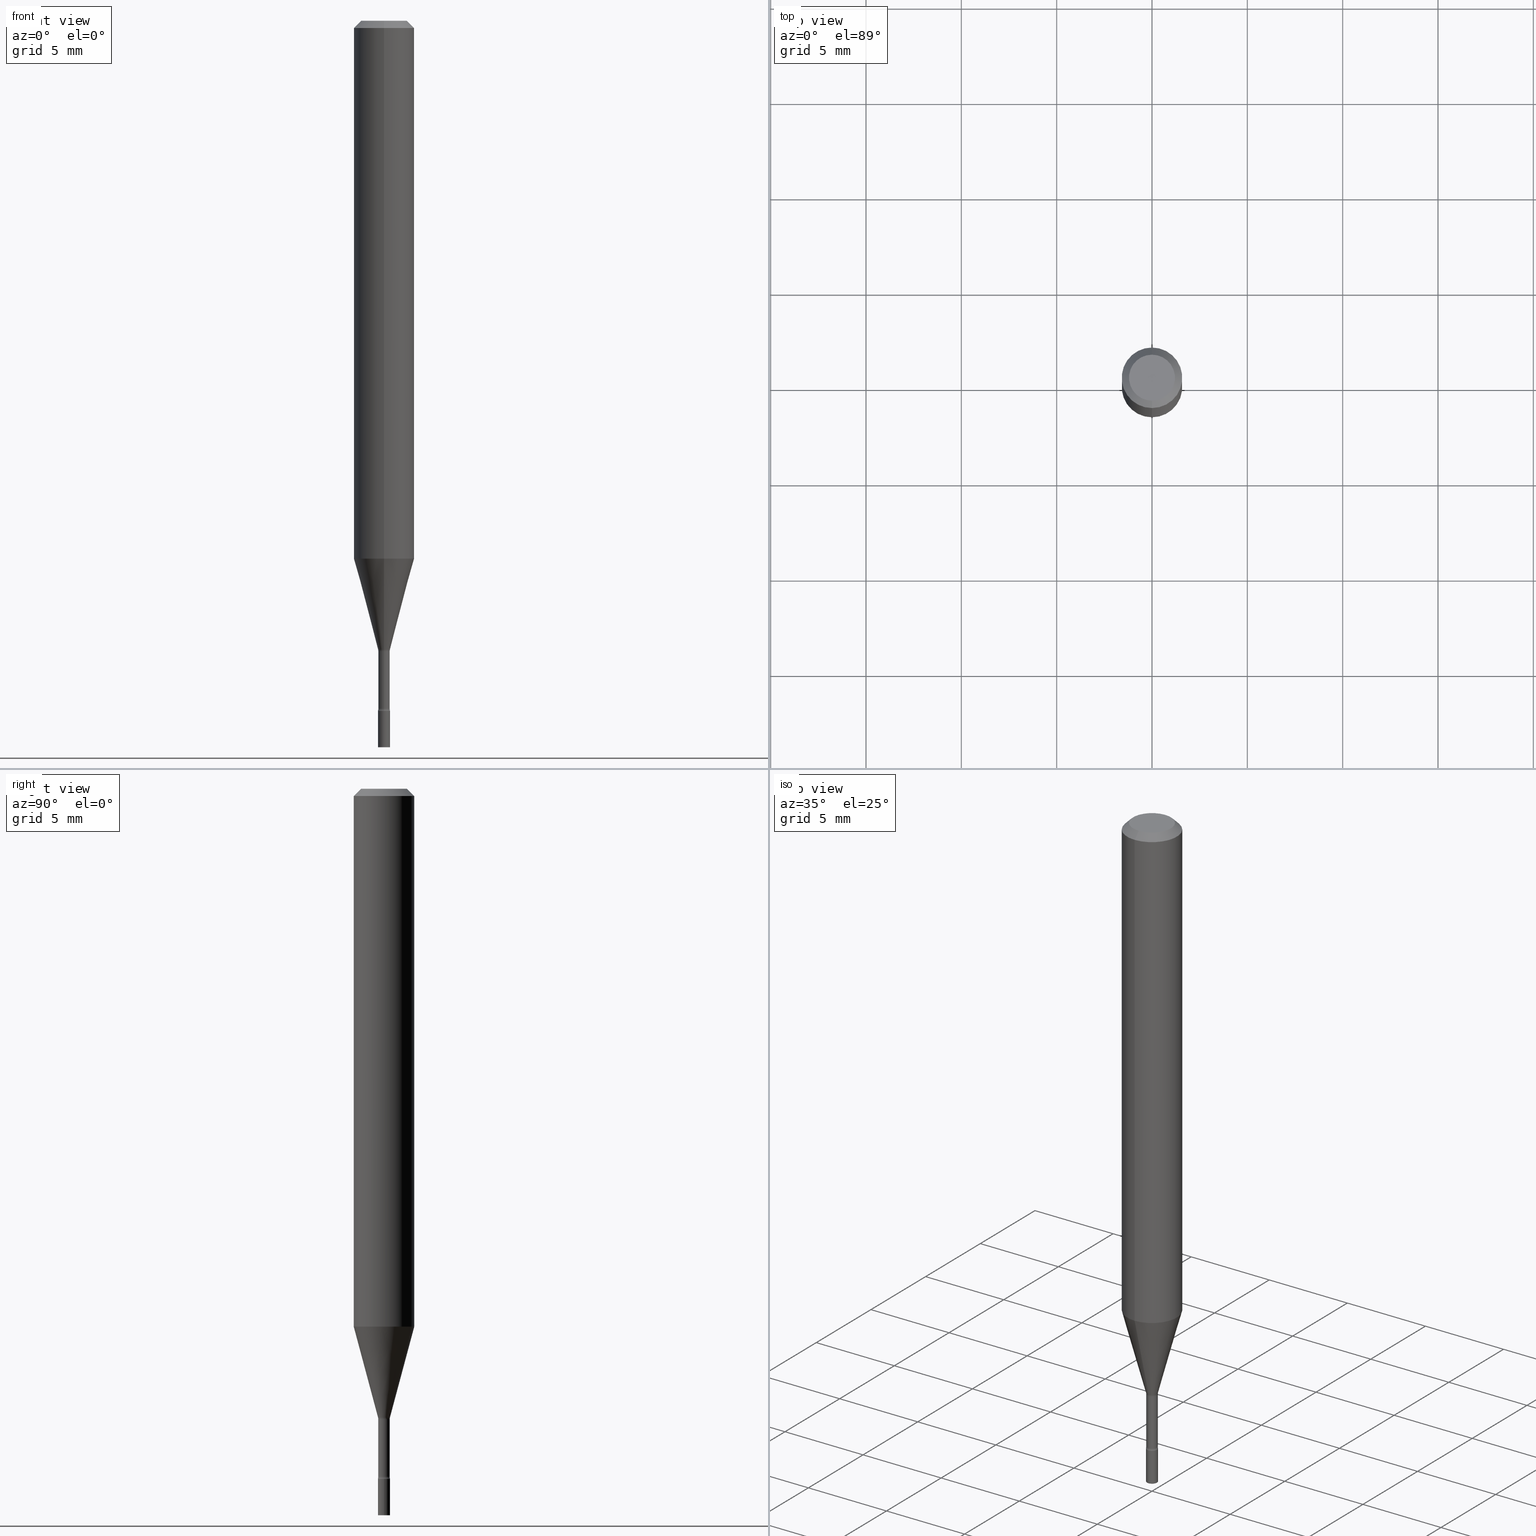
[diagram: canonical four-view strip — front | top / right | iso, engineering-drawing reading convention]
A machine part, canonical four-view strip (front | top / right | iso — engineering-drawing reading convention). The complete STEP part file that produces these views, byte-faithful:
ISO-10303-21;
HEADER;
FILE_DESCRIPTION (( 'STEP AP203' ),
    '1' );
FILE_NAME ('04269.STEP',
    '2024-03-08T22:43:08',
    ( '' ),
    ( '' ),
    'SwSTEP 2.0',
    'SolidWorks 2023',
    '' );
FILE_SCHEMA (( 'CONFIG_CONTROL_DESIGN' ));
ENDSEC;

DATA;
#1 = CARTESIAN_POINT ( 'NONE',  ( 3.174285327683107935E-29, -4.532494005902626170E-15, -1.298092501787273090 ) ) ;
#2 = CIRCLE ( 'NONE', #350, 0.06250000000000000000 ) ;
#3 = ORGANIZATION ( 'UNSPECIFIED', 'UNSPECIFIED', '' ) ;
#4 = ORIENTED_EDGE ( 'NONE', *, *, #8, .F. ) ;
#5 = DIRECTION ( 'NONE',  ( 6.982962677686265922E-15, 1.000000000000000000, -3.491657181334983134E-15 ) ) ;
#6 = DIRECTION ( 'NONE',  ( -2.445346016029371458E-29, 3.491657181334983134E-15, 1.000000000000000000 ) ) ;
#7 = ORIENTED_EDGE ( 'NONE', *, *, #293, .T. ) ;
#8 = EDGE_CURVE ( 'NONE', #81, #403, #355, .T. ) ;
#9 = PLANE ( 'NONE',  #71 ) ;
#10 = CIRCLE ( 'NONE', #52, 0.01250000000000000069 ) ;
#11 = ORIENTED_EDGE ( 'NONE', *, *, #196, .T. ) ;
#12 = AXIS2_PLACEMENT_3D ( 'NONE', #374, #48, #175 ) ;
#13 = LINE ( 'NONE', #134, #103 ) ;
#14 = EDGE_LOOP ( 'NONE', ( #29, #400, #425, #182 ) ) ;
#15 = DIRECTION ( 'NONE',  ( -2.445346016029371458E-29, 3.491657181334983134E-15, 1.000000000000000000 ) ) ;
#16 = ADVANCED_FACE ( 'NONE', ( #385 ), #500, .T. ) ;
#17 = ORIENTED_EDGE ( 'NONE', *, *, #277, .T. ) ;
#18 = DIRECTION ( 'NONE',  ( 2.438088387897960049E-29, -3.491481338843145188E-15, -1.000000000000000000 ) ) ;
#19 = ORIENTED_EDGE ( 'NONE', *, *, #32, .F. ) ;
#20 = CIRCLE ( 'NONE', #503, 0.06250000000000000000 ) ;
#21 = CARTESIAN_POINT ( 'NONE',  ( 3.473339087963991292E-29, -4.959007687372092628E-15, -1.420316251501201332 ) ) ;
#22 = CALENDAR_DATE ( 2024, 8, 3 ) ;
#23 = ORIENTED_EDGE ( 'NONE', *, *, #327, .F. ) ;
#24 = EDGE_CURVE ( 'NONE', #99, #131, #231, .T. ) ;
#25 = DIRECTION ( 'NONE',  ( -2.445468806185136597E-29, 3.491481338843145583E-15, 1.000000000000000000 ) ) ;
#26 = AXIS2_PLACEMENT_3D ( 'NONE', #393, #313, #467 ) ;
#27 = CC_DESIGN_PERSON_AND_ORGANIZATION_ASSIGNMENT ( #85, #290, ( #466 ) ) ;
#28 = CALENDAR_DATE ( 2024, 8, 3 ) ;
#29 = ORIENTED_EDGE ( 'NONE', *, *, #444, .T. ) ;
#30 = DIRECTION ( 'NONE',  ( -2.445346016029371458E-29, 3.491657181334983134E-15, 1.000000000000000000 ) ) ;
#31 = FACE_OUTER_BOUND ( 'NONE', #478, .T. ) ;
#32 = EDGE_CURVE ( 'NONE', #257, #329, #185, .T. ) ;
#33 = LINE ( 'NONE', #477, #372 ) ;
#34 = AXIS2_PLACEMENT_3D ( 'NONE', #21, #183, #227 ) ;
#35 = CIRCLE ( 'NONE', #323, 0.01250000000000000069 ) ;
#36 = CARTESIAN_POINT ( 'NONE',  ( 8.881784197004742293E-17, 0.01249999999999503418, -1.425000000000000266 ) ) ;
#37 = ORIENTED_EDGE ( 'NONE', *, *, #244, .T. ) ;
#38 = ADVANCED_FACE ( 'NONE', ( #222 ), #520, .F. ) ;
#39 = APPROVAL_ROLE ( '' ) ;
#40 = CARTESIAN_POINT ( 'NONE',  ( 1.900701818158615798E-16, 0.02674999999999505204, -1.420316251501201332 ) ) ;
#41 = ORIENTED_EDGE ( 'NONE', *, *, #225, .F. ) ;
#42 = DIRECTION ( 'NONE',  ( -6.982962677686266711E-15, -1.000000000000000000, 3.491657181334983529E-15 ) ) ;
#43 = DATE_TIME_ROLE ( 'classification_date' ) ;
#44 = CIRCLE ( 'NONE', #399, 0.06250000000000000000 ) ;
#45 = CARTESIAN_POINT ( 'NONE',  ( 0.000000000000000000, 0.000000000000000000, 0.000000000000000000 ) ) ;
#46 = DIRECTION ( 'NONE',  ( -6.982962677686265922E-15, -1.000000000000000000, 0.000000000000000000 ) ) ;
#47 = ADVANCED_FACE ( 'NONE', ( #309 ), #501, .T. ) ;
#48 = DIRECTION ( 'NONE',  ( -2.445468806185136597E-29, 3.491481338843145583E-15, 1.000000000000000000 ) ) ;
#49 = ORIENTED_EDGE ( 'NONE', *, *, #270, .T. ) ;
#50 = DIRECTION ( 'NONE',  ( -6.982962677686265922E-15, -1.000000000000000000, 3.491657181334983529E-15 ) ) ;
#51 = APPLICATION_CONTEXT ( 'configuration controlled 3d designs of mechanical parts and assemblies' ) ;
#52 = AXIS2_PLACEMENT_3D ( 'NONE', #395, #366, #325 ) ;
#53 = ORIENTED_EDGE ( 'NONE', *, *, #426, .F. ) ;
#54 = AXIS2_PLACEMENT_3D ( 'NONE', #45, #322, #362 ) ;
#55 = ADVANCED_FACE ( 'NONE', ( #470 ), #102, .F. ) ;
#56 = DIRECTION ( 'NONE',  ( 6.982962677686265922E-15, 1.000000000000000000, -3.483106191921935554E-15 ) ) ;
#57 = ORIENTED_EDGE ( 'NONE', *, *, #24, .F. ) ;
#58 = LINE ( 'NONE', #299, #496 ) ;
#59 = EDGE_LOOP ( 'NONE', ( #413, #455 ) ) ;
#60 = DIRECTION ( 'NONE',  ( -6.982962677686265922E-15, -1.000000000000000000, 4.370956789862821150E-15 ) ) ;
#61 = ORIENTED_EDGE ( 'NONE', *, *, #293, .F. ) ;
#62 = VECTOR ( 'NONE', #92, 39.37007874015748143 ) ;
#63 = DIRECTION ( 'NONE',  ( -6.982962677686266711E-15, -1.000000000000000000, 0.000000000000000000 ) ) ;
#64 = ADVANCED_FACE ( 'NONE', ( #31 ), #70, .F. ) ;
#65 = CARTESIAN_POINT ( 'NONE',  ( -4.364351673553912750E-16, -0.06250000000000005551, -0.01499999999999981209 ) ) ;
#66 = CARTESIAN_POINT ( 'NONE',  ( 8.728703347111317935E-17, 0.01249999999999502551, -1.425000000000000266 ) ) ;
#67 = APPROVAL_STATUS ( 'not_yet_approved' ) ;
#68 = DIRECTION ( 'NONE',  ( -2.445346016029371458E-29, 3.491657181334983134E-15, 1.000000000000000000 ) ) ;
#69 = APPLICATION_CONTEXT ( 'configuration controlled 3d designs of mechanical parts and assemblies' ) ;
#70 = TOROIDAL_SURFACE ( 'NONE', #34, 0.02675000000000001335, 0.01500000000000001679 ) ;
#71 = AXIS2_PLACEMENT_3D ( 'NONE', #172, #18, #261 ) ;
#72 = LOCAL_TIME ( 17, 43, 8.000000000000000000, #510 ) ;
#73 = APPROVAL_ROLE ( '' ) ;
#74 = DIRECTION ( 'NONE',  ( -6.982962677686269077E-15, -1.000000000000000000, 0.000000000000000000 ) ) ;
#75 = APPROVAL_DATE_TIME ( #242, #289 ) ;
#76 = CARTESIAN_POINT ( 'NONE',  ( 3.484793048813820547E-29, -4.975360907851483175E-15, -1.425000000000000266 ) ) ;
#77 = ORIENTED_EDGE ( 'NONE', *, *, #108, .F. ) ;
#78 = CIRCLE ( 'NONE', #502, 0.04749999999999999362 ) ;
#79 = AXIS2_PLACEMENT_3D ( 'NONE', #80, #157, #74 ) ;
#80 = CARTESIAN_POINT ( 'NONE',  ( -1.867942516280757616E-16, -0.02675000000000454445, -1.301974787463811012 ) ) ;
#81 = VERTEX_POINT ( 'NONE', #188 ) ;
#82 = PERSON_AND_ORGANIZATION_ROLE ( 'classification_officer' ) ;
#83 = DIRECTION ( 'NONE',  ( 1.000000000000000000, -6.982962677686265922E-15, 4.876176775795935793E-29 ) ) ;
#84 = ORIENTED_EDGE ( 'NONE', *, *, #270, .F. ) ;
#85 = PERSON_AND_ORGANIZATION ( #153, #3 ) ;
#86 = DIRECTION ( 'NONE',  ( -2.445346016029371458E-29, 3.491657181334983134E-15, 1.000000000000000000 ) ) ;
#87 = ADVANCED_FACE ( 'NONE', ( #110 ), #135, .F. ) ;
#88 = CIRCLE ( 'NONE', #440, 0.01174999999999999482 ) ;
#89 = CARTESIAN_POINT ( 'NONE',  ( 0.000000000000000000, 0.000000000000000000, 0.000000000000000000 ) ) ;
#90 = LINE ( 'NONE', #410, #62 ) ;
#91 = ORIENTED_EDGE ( 'NONE', *, *, #426, .T. ) ;
#92 = DIRECTION ( 'NONE',  ( -2.445346016029371178E-29, 3.491657181334983134E-15, 1.000000000000000000 ) ) ;
#93 = ORIENTED_EDGE ( 'NONE', *, *, #108, .T. ) ;
#94 = ADVANCED_FACE ( 'NONE', ( #267 ), #107, .T. ) ;
#95 = FACE_OUTER_BOUND ( 'NONE', #14, .T. ) ;
#96 = ORIENTED_EDGE ( 'NONE', *, *, #461, .T. ) ;
#97 = VECTOR ( 'NONE', #215, 39.37007874015748143 ) ;
#98 = LINE ( 'NONE', #294, #285 ) ;
#99 = VERTEX_POINT ( 'NONE', #316 ) ;
#100 = EDGE_LOOP ( 'NONE', ( #361, #77 ) ) ;
#101 = EDGE_CURVE ( 'NONE', #173, #403, #330, .T. ) ;
#102 = PLANE ( 'NONE',  #250 ) ;
#103 = VECTOR ( 'NONE', #304, 39.37007874015748143 ) ;
#104 =( NAMED_UNIT ( * ) SI_UNIT ( $, .STERADIAN. ) SOLID_ANGLE_UNIT ( ) );
#105 = CARTESIAN_POINT ( 'NONE',  ( 0.000000000000000000, 0.000000000000000000, 0.000000000000000000 ) ) ;
#106 = PERSON_AND_ORGANIZATION_ROLE ( 'creator' ) ;
#107 = CYLINDRICAL_SURFACE ( 'NONE', #429, 0.06250000000000000000 ) ;
#108 = EDGE_CURVE ( 'NONE', #375, #145, #10, .T. ) ;
#109 = PERSON_AND_ORGANIZATION ( #153, #3 ) ;
#110 = FACE_OUTER_BOUND ( 'NONE', #164, .T. ) ;
#111 = AXIS2_PLACEMENT_3D ( 'NONE', #211, #256, #177 ) ;
#112 = PRODUCT_DEFINITION ( 'UNKNOWN', '', #466, #184 ) ;
#113 = ORIENTED_EDGE ( 'NONE', *, *, #277, .F. ) ;
#114 = PLANE ( 'NONE',  #137 ) ;
#115 = CARTESIAN_POINT ( 'NONE',  ( 7.068409209779156396E-46, -1.009283006010519705E-31, -2.890555840950673101E-17 ) ) ;
#116 = EDGE_CURVE ( 'NONE', #411, #257, #438, .T. ) ;
#117 = TOROIDAL_SURFACE ( 'NONE', #171, 0.02675000000000001335, 0.01500000000000001679 ) ;
#118 = CALENDAR_DATE ( 2024, 8, 3 ) ;
#119 = LINE ( 'NONE', #122, #197 ) ;
#120 = EDGE_LOOP ( 'NONE', ( #61, #216, #91, #140 ) ) ;
#121 = COORDINATED_UNIVERSAL_TIME_OFFSET ( 5, 0, .BEHIND. ) ;
#122 = CARTESIAN_POINT ( 'NONE',  ( -0.01250000000000000069, 8.881784197001252816E-17, -6.148668862818633278E-31 ) ) ;
#123 = ADVANCED_FACE ( 'NONE', ( #200 ), #404, .F. ) ;
#124 = DIRECTION ( 'NONE',  ( -6.982962677686265133E-15, -1.000000000000000000, 0.000000000000000000 ) ) ;
#125 = VECTOR ( 'NONE', #511, 39.37007874015748143 ) ;
#126 = CONICAL_SURFACE ( 'NONE', #206, 0.01226111260566398187, 0.2617993877991499629 ) ;
#127 = DIRECTION ( 'NONE',  ( -2.445346016029371178E-29, 3.491657181334983134E-15, 1.000000000000000000 ) ) ;
#128 = VERTEX_POINT ( 'NONE', #282 ) ;
#129 = DIRECTION ( 'NONE',  ( -2.445346016029371458E-29, 3.491657181334983134E-15, 1.000000000000000000 ) ) ;
#130 = EDGE_CURVE ( 'NONE', #128, #288, #167, .T. ) ;
#131 = VERTEX_POINT ( 'NONE', #439 ) ;
#132 = FACE_OUTER_BOUND ( 'NONE', #443, .T. ) ;
#133 = ORIENTED_EDGE ( 'NONE', *, *, #174, .F. ) ;
#134 = CARTESIAN_POINT ( 'NONE',  ( -4.364351673553916201E-16, -0.06250000000000000000, 2.182285738334364459E-16 ) ) ;
#135 = TOROIDAL_SURFACE ( 'NONE', #363, 0.02674999999999999947, 0.01500000000000002373 ) ;
#136 = EDGE_LOOP ( 'NONE', ( #334, #508 ) ) ;
#137 = AXIS2_PLACEMENT_3D ( 'NONE', #76, #287, #83 ) ;
#138 = LOCAL_TIME ( 17, 43, 8.000000000000000000, #308 ) ;
#139 = CARTESIAN_POINT ( 'NONE',  ( 3.174285327683107935E-29, -4.532494005902626170E-15, -1.298092501787273090 ) ) ;
#140 = ORIENTED_EDGE ( 'NONE', *, *, #255, .F. ) ;
#141 = EDGE_CURVE ( 'NONE', #257, #411, #78, .T. ) ;
#142 = DIRECTION ( 'NONE',  ( -6.982962677686265922E-15, -1.000000000000000000, 4.370956789862821150E-15 ) ) ;
#143 = EDGE_LOOP ( 'NONE', ( #424, #37, #379, #417 ) ) ;
#144 = CARTESIAN_POINT ( 'NONE',  ( 2.715797425462365486E-29, -3.877828954065218301E-15, -1.110598421515879952 ) ) ;
#145 = VERTEX_POINT ( 'NONE', #360 ) ;
#146 = CIRCLE ( 'NONE', #111, 0.01250000000000000069 ) ;
#147 = LOCAL_TIME ( 17, 43, 8.000000000000000000, #388 ) ;
#148 = APPROVAL_DATE_TIME ( #229, #331 ) ;
#149 = DIRECTION ( 'NONE',  ( -6.982962677686266711E-15, -1.000000000000000000, 3.491657181334983529E-15 ) ) ;
#150 = ADVANCED_FACE ( 'NONE', ( #514 ), #517, .T. ) ;
#151 = MECHANICAL_CONTEXT ( 'NONE', #69, 'mechanical' ) ;
#152 = CC_DESIGN_PERSON_AND_ORGANIZATION_ASSIGNMENT ( #499, #223, ( #512 ) ) ;
#153 = PERSON ( 'UNSPECIFIED', 'UNSPECIFIED', 'UNSPECIFIED', ('UNSPECIFIED'), ('UNSPECIFIED'), ('UNSPECIFIED') ) ;
#154 = COORDINATED_UNIVERSAL_TIME_OFFSET ( 5, 0, .BEHIND. ) ;
#155 = ORIENTED_EDGE ( 'NONE', *, *, #218, .T. ) ;
#156 = CIRCLE ( 'NONE', #79, 0.01500000000000001853 ) ;
#157 = DIRECTION ( 'NONE',  ( -1.000000000000000000, 6.982962677686265922E-15, -4.883557194083112901E-29 ) ) ;
#158 = MANIFOLD_SOLID_BREP ( 'Body-Move/Copy2[2]', #387 ) ;
#159 = EDGE_CURVE ( 'NONE', #131, #269, #189, .T. ) ;
#160 = DIRECTION ( 'NONE',  ( -2.445346016029371458E-29, 3.491657181334983134E-15, 1.000000000000000000 ) ) ;
#161 = PERSON_AND_ORGANIZATION ( #153, #3 ) ;
#162 = CC_DESIGN_PERSON_AND_ORGANIZATION_ASSIGNMENT ( #441, #82, ( #332 ) ) ;
#163 = FACE_OUTER_BOUND ( 'NONE', #475, .T. ) ;
#164 = EDGE_LOOP ( 'NONE', ( #281, #307, #305, #339 ) ) ;
#165 = DIRECTION ( 'NONE',  ( -2.445346016029371458E-29, 3.491657181334983134E-15, 1.000000000000000000 ) ) ;
#166 = ADVANCED_FACE ( 'NONE', ( #163 ), #292, .T. ) ;
#167 = LINE ( 'NONE', #209, #125 ) ;
#168 = DIRECTION ( 'NONE',  ( -2.445346016029371458E-29, 3.491657181334983134E-15, 1.000000000000000000 ) ) ;
#169 = EDGE_LOOP ( 'NONE', ( #203, #240, #295, #354 ) ) ;
#170 = AXIS2_PLACEMENT_3D ( 'NONE', #465, #345, #63 ) ;
#171 = AXIS2_PLACEMENT_3D ( 'NONE', #506, #306, #234 ) ;
#172 = CARTESIAN_POINT ( 'NONE',  ( 8.728703347111501591E-17, 0.01249999999999476356, -1.499999999999999778 ) ) ;
#173 = VERTEX_POINT ( 'NONE', #321 ) ;
#174 = EDGE_CURVE ( 'NONE', #128, #81, #156, .T. ) ;
#175 = DIRECTION ( 'NONE',  ( 1.000000000000000000, -6.982962677686294321E-15, 0.000000000000000000 ) ) ;
#176 = VERTEX_POINT ( 'NONE', #435 ) ;
#177 = DIRECTION ( 'NONE',  ( 1.000000000000000000, -6.982962677686294321E-15, 0.000000000000000000 ) ) ;
#178 = EDGE_LOOP ( 'NONE', ( #518, #113, #450, #298 ) ) ;
#179 = CARTESIAN_POINT ( 'NONE',  ( 4.440892098500625669E-16, 0.06250000000000000000, -2.182285738334364459E-16 ) ) ;
#180 = UNCERTAINTY_MEASURE_WITH_UNIT (LENGTH_MEASURE( 1.000000000000000082E-05 ), #430, 'distance_accuracy_value', 'NONE');
#181 = CONICAL_SURFACE ( 'NONE', #241, 0.06250000000000000000, 0.7853981633974483900 ) ;
#182 = ORIENTED_EDGE ( 'NONE', *, *, #130, .F. ) ;
#183 = DIRECTION ( 'NONE',  ( -2.445346016029371458E-29, 3.491657181334983134E-15, 1.000000000000000000 ) ) ;
#184 = DESIGN_CONTEXT ( 'detailed design', #51, 'design' ) ;
#185 = LINE ( 'NONE', #505, #264 ) ;
#186 = EDGE_CURVE ( 'NONE', #173, #437, #33, .T. ) ;
#187 = CARTESIAN_POINT ( 'NONE',  ( 3.174285327683107935E-29, -4.532494005902626170E-15, -1.298092501787273090 ) ) ;
#188 = CARTESIAN_POINT ( 'NONE',  ( -8.204981146278178803E-17, -0.01175000000000454500, -1.301974787463811012 ) ) ;
#189 = CIRCLE ( 'NONE', #494, 0.01250000000000000069 ) ;
#190 = AXIS2_PLACEMENT_3D ( 'NONE', #89, #129, #50 ) ;
#191 = DIRECTION ( 'NONE',  ( -6.982962677686265922E-15, -1.000000000000000000, 3.491657181334983134E-15 ) ) ;
#192 = DIRECTION ( 'NONE',  ( 6.982962677686265922E-15, 1.000000000000000000, -3.483106191921935554E-15 ) ) ;
#193 = DIRECTION ( 'NONE',  ( 1.000000000000000000, -6.982962677686267499E-15, 4.876176775795936353E-29 ) ) ;
#194 = DIRECTION ( 'NONE',  ( 7.105427357600998703E-15, 1.000000000000000000, 0.000000000000000000 ) ) ;
#195 = AXIS2_PLACEMENT_3D ( 'NONE', #105, #25, #427 ) ;
#196 = EDGE_CURVE ( 'NONE', #452, #329, #2, .T. ) ;
#197 = VECTOR ( 'NONE', #236, 39.37007874015748143 ) ;
#198 = CC_DESIGN_SECURITY_CLASSIFICATION ( #332, ( #466 ) ) ;
#199 = APPROVAL_DATE_TIME ( #279, #228 ) ;
#200 = FACE_OUTER_BOUND ( 'NONE', #212, .T. ) ;
#201 = CARTESIAN_POINT ( 'NONE',  ( 7.068409209779156396E-46, -1.009283006010519705E-31, -2.890555840950673101E-17 ) ) ;
#202 = DIRECTION ( 'NONE',  ( -6.982962677686266711E-15, -1.000000000000000000, 3.491657181334983529E-15 ) ) ;
#203 = ORIENTED_EDGE ( 'NONE', *, *, #382, .T. ) ;
#204 = AXIS2_PLACEMENT_3D ( 'NONE', #446, #160, #280 ) ;
#205 = AXIS2_PLACEMENT_3D ( 'NONE', #472, #432, #235 ) ;
#206 = AXIS2_PLACEMENT_3D ( 'NONE', #139, #6, #418 ) ;
#207 = APPROVAL_ROLE ( '' ) ;
#208 = APPROVAL_PERSON_ORGANIZATION ( #109, #331, #73 ) ;
#209 = CARTESIAN_POINT ( 'NONE',  ( -8.561889171222843884E-17, -0.01226111260566851470, -1.298092501787273090 ) ) ;
#210 = DIRECTION ( 'NONE',  ( -2.445346016029371458E-29, 3.491657181334983134E-15, 1.000000000000000000 ) ) ;
#211 = CARTESIAN_POINT ( 'NONE',  ( 3.668203209277704895E-29, -5.237222008264718177E-15, -1.500000000000000222 ) ) ;
#212 = EDGE_LOOP ( 'NONE', ( #368, #463 ) ) ;
#213 = CARTESIAN_POINT ( 'NONE',  ( 8.348877145184650657E-17, 0.01174999999999545332, -1.301974787463811012 ) ) ;
#214 = ORIENTED_EDGE ( 'NONE', *, *, #255, .T. ) ;
#215 = DIRECTION ( 'NONE',  ( -2.445346016029371178E-29, 3.491657181334983134E-15, 1.000000000000000000 ) ) ;
#216 = ORIENTED_EDGE ( 'NONE', *, *, #481, .T. ) ;
#217 = LINE ( 'NONE', #179, #97 ) ;
#218 = EDGE_CURVE ( 'NONE', #176, #269, #364, .T. ) ;
#219 = VERTEX_POINT ( 'NONE', #407 ) ;
#220 =( NAMED_UNIT ( * ) PLANE_ANGLE_UNIT ( ) SI_UNIT ( $, .RADIAN. ) );
#221 = CIRCLE ( 'NONE', #310, 0.01226111260566398187 ) ;
#222 = FACE_OUTER_BOUND ( 'NONE', #300, .T. ) ;
#223 = PERSON_AND_ORGANIZATION_ROLE ( 'design_owner' ) ;
#224 = CARTESIAN_POINT ( 'NONE',  ( 0.000000000000000000, 0.000000000000000000, 0.000000000000000000 ) ) ;
#225 = EDGE_CURVE ( 'NONE', #375, #491, #119, .T. ) ;
#226 = CARTESIAN_POINT ( 'NONE',  ( -0.01250000000000000069, -5.017473616088089257E-15, -1.425000000000000266 ) ) ;
#227 = DIRECTION ( 'NONE',  ( -6.982962677686266711E-15, -1.000000000000000000, 3.491657181334983529E-15 ) ) ;
#228 = APPROVAL ( #396, 'UNSPECIFIED' ) ;
#229 = DATE_AND_TIME ( #22, #138 ) ;
#230 = DIRECTION ( 'NONE',  ( -2.445346016029371458E-29, 3.491657181334983134E-15, 1.000000000000000000 ) ) ;
#231 = CIRCLE ( 'NONE', #26, 0.01500000000000001853 ) ;
#232 = AXIS2_PLACEMENT_3D ( 'NONE', #265, #347, #384 ) ;
#233 = CC_DESIGN_APPROVAL ( #228, ( #466 ) ) ;
#234 = DIRECTION ( 'NONE',  ( -6.982962677686266711E-15, -1.000000000000000000, 3.491657181334983529E-15 ) ) ;
#235 = DIRECTION ( 'NONE',  ( 7.105427357600997914E-15, 1.000000000000000000, 0.000000000000000000 ) ) ;
#236 = DIRECTION ( 'NONE',  ( -2.445468806185136877E-29, 3.491481338843145188E-15, 1.000000000000000000 ) ) ;
#237 = ADVANCED_FACE ( 'NONE', ( #476 ), #114, .T. ) ;
#238 = PRODUCT_DEFINITION_SHAPE ( 'NONE', 'NONE',  #112 ) ;
#239 = DIRECTION ( 'NONE',  ( -2.445346016029371458E-29, 3.491657181334983134E-15, 1.000000000000000000 ) ) ;
#240 = ORIENTED_EDGE ( 'NONE', *, *, #225, .T. ) ;
#241 = AXIS2_PLACEMENT_3D ( 'NONE', #344, #464, #192 ) ;
#242 = DATE_AND_TIME ( #365, #391 ) ;
#243 = DIRECTION ( 'NONE',  ( 1.839019923739597949E-15, 0.2588190451025246253, 0.9659258262890670910 ) ) ;
#244 = EDGE_CURVE ( 'NONE', #173, #128, #221, .T. ) ;
#245 = DIRECTION ( 'NONE',  ( -2.445346016029371458E-29, 3.491657181334983134E-15, 1.000000000000000000 ) ) ;
#246 = ORIENTED_EDGE ( 'NONE', *, *, #386, .T. ) ;
#247 = CC_DESIGN_DATE_AND_TIME_ASSIGNMENT ( #320, #519, ( #112 ) ) ;
#248 = PERSON_AND_ORGANIZATION_ROLE ( 'design_supplier' ) ;
#249 = DIRECTION ( 'NONE',  ( -2.445346016029371458E-29, 3.491657181334983134E-15, 1.000000000000000000 ) ) ;
#250 = AXIS2_PLACEMENT_3D ( 'NONE', #66, #381, #191 ) ;
#251 = AXIS2_PLACEMENT_3D ( 'NONE', #484, #15, #492 ) ;
#252 = FACE_OUTER_BOUND ( 'NONE', #262, .T. ) ;
#253 = CARTESIAN_POINT ( 'NONE',  ( 4.440892098500899305E-16, 0.06249999999999995143, -0.01500000000000024751 ) ) ;
#254 = EDGE_LOOP ( 'NONE', ( #488, #337, #11, #19 ) ) ;
#255 = EDGE_CURVE ( 'NONE', #329, #452, #44, .T. ) ;
#256 = DIRECTION ( 'NONE',  ( -2.445468806185136597E-29, 3.491481338843145583E-15, 1.000000000000000000 ) ) ;
#257 = VERTEX_POINT ( 'NONE', #398 ) ;
#258 = CIRCLE ( 'NONE', #473, 0.06250000000000000000 ) ;
#259 = CARTESIAN_POINT ( 'NONE',  ( -0.01250000000000000069, -5.017473616088089257E-15, -1.500000000000000222 ) ) ;
#260 = ORIENTED_EDGE ( 'NONE', *, *, #244, .F. ) ;
#261 = DIRECTION ( 'NONE',  ( -1.000000000000000000, 6.982962677686265922E-15, -4.876176775795935793E-29 ) ) ;
#262 = EDGE_LOOP ( 'NONE', ( #23, #318, #498, #214 ) ) ;
#263 = ORIENTED_EDGE ( 'NONE', *, *, #420, .T. ) ;
#264 = VECTOR ( 'NONE', #433, 39.37007874015748143 ) ;
#265 = CARTESIAN_POINT ( 'NONE',  ( 0.000000000000000000, 0.000000000000000000, 0.000000000000000000 ) ) ;
#266 = AXIS2_PLACEMENT_3D ( 'NONE', #471, #271, #392 ) ;
#267 = FACE_OUTER_BOUND ( 'NONE', #485, .T. ) ;
#268 = DIRECTION ( 'NONE',  ( -2.445346016029371458E-29, 3.491657181334983134E-15, 1.000000000000000000 ) ) ;
#269 = VERTEX_POINT ( 'NONE', #36 ) ;
#270 = EDGE_CURVE ( 'NONE', #403, #81, #431, .T. ) ;
#271 = DIRECTION ( 'NONE',  ( -2.445346016029371458E-29, 3.491657181334983134E-15, 1.000000000000000000 ) ) ;
#272 = CARTESIAN_POINT ( 'NONE',  ( 0.000000000000000000, 0.000000000000000000, 0.000000000000000000 ) ) ;
#273 = LENGTH_MEASURE_WITH_UNIT ( LENGTH_MEASURE( 0.02539999999999999897 ), #462 );
#274 = DIRECTION ( 'NONE',  ( -2.445346016029371458E-29, 3.491657181334983134E-15, 1.000000000000000000 ) ) ;
#275 = CIRCLE ( 'NONE', #341, 0.01226111260566398187 ) ;
#276 = CONICAL_SURFACE ( 'NONE', #251, 0.01226111260566398187, 0.2617993877991499629 ) ;
#277 = EDGE_CURVE ( 'NONE', #99, #176, #88, .T. ) ;
#278 = DIRECTION ( 'NONE',  ( -2.445468806185136597E-29, 3.491481338843145583E-15, 1.000000000000000000 ) ) ;
#279 = DATE_AND_TIME ( #118, #72 ) ;
#280 = DIRECTION ( 'NONE',  ( -6.982962677686265922E-15, -1.000000000000000000, 3.491657181334983134E-15 ) ) ;
#281 = ORIENTED_EDGE ( 'NONE', *, *, #101, .F. ) ;
#282 = CARTESIAN_POINT ( 'NONE',  ( -8.561889171222843884E-17, -0.01226111260566851470, -1.298092501787273090 ) ) ;
#283 = ORIENTED_EDGE ( 'NONE', *, *, #314, .T. ) ;
#284 = EDGE_CURVE ( 'NONE', #491, #219, #35, .T. ) ;
#285 = VECTOR ( 'NONE', #409, 39.37007874015748143 ) ;
#286 = CC_DESIGN_APPROVAL ( #289, ( #332 ) ) ;
#287 = DIRECTION ( 'NONE',  ( -2.438088387897960049E-29, 3.491481338843145188E-15, 1.000000000000000000 ) ) ;
#288 = VERTEX_POINT ( 'NONE', #333 ) ;
#289 = APPROVAL ( #405, 'UNSPECIFIED' ) ;
#290 = PERSON_AND_ORGANIZATION_ROLE ( 'creator' ) ;
#291 = DIRECTION ( 'NONE',  ( -6.982962677686265922E-15, -1.000000000000000000, 3.483106191921935554E-15 ) ) ;
#292 = CYLINDRICAL_SURFACE ( 'NONE', #54, 0.01174999999999999656 ) ;
#293 = EDGE_CURVE ( 'NONE', #437, #329, #217, .T. ) ;
#294 = CARTESIAN_POINT ( 'NONE',  ( -4.287811248607203282E-16, -0.06250000000000005551, -0.01499999999999981209 ) ) ;
#295 = ORIENTED_EDGE ( 'NONE', *, *, #436, .F. ) ;
#296 = DIRECTION ( 'NONE',  ( -2.445468806185136877E-29, 3.491481338843145188E-15, 1.000000000000000000 ) ) ;
#297 = CC_DESIGN_PERSON_AND_ORGANIZATION_ASSIGNMENT ( #469, #106, ( #112 ) ) ;
#298 = ORIENTED_EDGE ( 'NONE', *, *, #159, .T. ) ;
#299 = CARTESIAN_POINT ( 'NONE',  ( 0.01250000000000000069, -8.728703347107834621E-17, 6.095220969744920617E-31 ) ) ;
#300 = EDGE_LOOP ( 'NONE', ( #260, #377, #49, #133 ) ) ;
#301 = ADVANCED_BREP_SHAPE_REPRESENTATION ( '04269', ( #326, #158, #232 ), #414 ) ;
#302 = CLOSED_SHELL ( 'NONE', ( #16, #237, #47, #336 ) ) ;
#303 = AXIS2_PLACEMENT_3D ( 'NONE', #497, #210, #454 ) ;
#304 = DIRECTION ( 'NONE',  ( -2.445346016029371178E-29, 3.491657181334983134E-15, 1.000000000000000000 ) ) ;
#305 = ORIENTED_EDGE ( 'NONE', *, *, #174, .T. ) ;
#306 = DIRECTION ( 'NONE',  ( -2.445346016029371458E-29, 3.491657181334983134E-15, 1.000000000000000000 ) ) ;
#307 = ORIENTED_EDGE ( 'NONE', *, *, #444, .F. ) ;
#308 = COORDINATED_UNIVERSAL_TIME_OFFSET ( 5, 0, .BEHIND. ) ;
#309 = FACE_OUTER_BOUND ( 'NONE', #421, .T. ) ;
#310 = AXIS2_PLACEMENT_3D ( 'NONE', #1, #165, #324 ) ;
#311 = ORIENTED_EDGE ( 'NONE', *, *, #373, .T. ) ;
#312 = DIRECTION ( 'NONE',  ( -6.982962677686265133E-15, -1.000000000000000000, 0.000000000000000000 ) ) ;
#313 = DIRECTION ( 'NONE',  ( -1.000000000000000000, 6.982962677686265922E-15, -4.883557194083112901E-29 ) ) ;
#314 = EDGE_CURVE ( 'NONE', #176, #99, #389, .T. ) ;
#315 = APPLICATION_PROTOCOL_DEFINITION ( 'international standard', 'config_control_design', 1994, #51 ) ;
#316 = CARTESIAN_POINT ( 'NONE',  ( -8.204981146277886678E-17, -0.01175000000000495440, -1.420316251501201332 ) ) ;
#317 = SHAPE_DEFINITION_REPRESENTATION ( #238, #301 ) ;
#318 = ORIENTED_EDGE ( 'NONE', *, *, #141, .F. ) ;
#319 = DIRECTION ( 'NONE',  ( 1.000000000000000000, -7.105427357601001070E-15, 4.926317661991530318E-29 ) ) ;
#320 = DATE_AND_TIME ( #28, #147 ) ;
#321 = CARTESIAN_POINT ( 'NONE',  ( 2.656048273965166204E-16, 0.01226111260565944903, -1.298092501787273090 ) ) ;
#322 = DIRECTION ( 'NONE',  ( -2.445346016029371458E-29, 3.491657181334983134E-15, 1.000000000000000000 ) ) ;
#323 = AXIS2_PLACEMENT_3D ( 'NONE', #367, #378, #338 ) ;
#324 = DIRECTION ( 'NONE',  ( -6.982962677686265133E-15, -1.000000000000000000, 0.000000000000000000 ) ) ;
#325 = DIRECTION ( 'NONE',  ( 1.000000000000000000, -6.982962677686294321E-15, 0.000000000000000000 ) ) ;
#326 = MANIFOLD_SOLID_BREP ( 'Body-Move/Copy2[1]', #302 ) ;
#327 = EDGE_CURVE ( 'NONE', #411, #452, #98, .T. ) ;
#328 = CARTESIAN_POINT ( 'NONE',  ( 8.348877145181173506E-17, 0.01174999999999999656, -4.102697188068604261E-17 ) ) ;
#329 = VERTEX_POINT ( 'NONE', #253 ) ;
#330 = CIRCLE ( 'NONE', #205, 0.01500000000000002720 ) ;
#331 = APPROVAL ( #67, 'UNSPECIFIED' ) ;
#332 = SECURITY_CLASSIFICATION ( '', '', #515 ) ;
#333 = CARTESIAN_POINT ( 'NONE',  ( -4.364351673553645523E-16, -0.06250000000000388578, -1.110598421515879730 ) ) ;
#334 = ORIENTED_EDGE ( 'NONE', *, *, #436, .T. ) ;
#335 = DIRECTION ( 'NONE',  ( -2.445346016029371458E-29, 3.491657181334983134E-15, 1.000000000000000000 ) ) ;
#336 = ADVANCED_FACE ( 'NONE', ( #449 ), #9, .T. ) ;
#337 = ORIENTED_EDGE ( 'NONE', *, *, #327, .T. ) ;
#338 = DIRECTION ( 'NONE',  ( 1.000000000000000000, -6.982962677686294321E-15, 0.000000000000000000 ) ) ;
#339 = ORIENTED_EDGE ( 'NONE', *, *, #8, .T. ) ;
#340 = CC_DESIGN_PERSON_AND_ORGANIZATION_ASSIGNMENT ( #161, #248, ( #466 ) ) ;
#341 = AXIS2_PLACEMENT_3D ( 'NONE', #187, #268, #312 ) ;
#342 = CYLINDRICAL_SURFACE ( 'NONE', #190, 0.01174999999999999656 ) ;
#343 = ORIENTED_EDGE ( 'NONE', *, *, #420, .F. ) ;
#344 = CARTESIAN_POINT ( 'NONE',  ( 3.668019024044063825E-31, -5.237485772002485746E-17, -0.01500000000000003067 ) ) ;
#345 = DIRECTION ( 'NONE',  ( -2.445346016029371458E-29, 3.491657181334983134E-15, 1.000000000000000000 ) ) ;
#346 = ADVANCED_FACE ( 'NONE', ( #487 ), #126, .T. ) ;
#347 = DIRECTION ( 'NONE',  ( 0.000000000000000000, 0.000000000000000000, 1.000000000000000000 ) ) ;
#348 = CARTESIAN_POINT ( 'NONE',  ( 3.183938729182273285E-29, -4.545820674074166863E-15, -1.301974787463811012 ) ) ;
#349 = FACE_OUTER_BOUND ( 'NONE', #178, .T. ) ;
#350 = AXIS2_PLACEMENT_3D ( 'NONE', #402, #249, #479 ) ;
#351 = CARTESIAN_POINT ( 'NONE',  ( 3.183938729182273285E-29, -4.545820674074166863E-15, -1.301974787463811012 ) ) ;
#352 = CARTESIAN_POINT ( 'NONE',  ( 2.715797425462365486E-29, -3.877828954065218301E-15, -1.110598421515879952 ) ) ;
#353 = DIRECTION ( 'NONE',  ( -2.445346016029371458E-29, 3.491657181334983134E-15, 1.000000000000000000 ) ) ;
#354 = ORIENTED_EDGE ( 'NONE', *, *, #386, .F. ) ;
#355 = CIRCLE ( 'NONE', #170, 0.01174999999999999829 ) ;
#356 = CARTESIAN_POINT ( 'NONE',  ( 3.316907271900976096E-16, 0.04749999999999999362, -1.803064953181650371E-16 ) ) ;
#357 = AXIS2_PLACEMENT_3D ( 'NONE', #40, #319, #194 ) ;
#358 = DIRECTION ( 'NONE',  ( 2.445346016029370897E-29, -3.491657181334983134E-15, -1.000000000000000000 ) ) ;
#359 = ADVANCED_FACE ( 'NONE', ( #132 ), #342, .T. ) ;
#360 = CARTESIAN_POINT ( 'NONE',  ( 0.01250000000000000069, -5.324509041735797299E-15, -1.500000000000000222 ) ) ;
#361 = ORIENTED_EDGE ( 'NONE', *, *, #382, .F. ) ;
#362 = DIRECTION ( 'NONE',  ( -6.982962677686265922E-15, -1.000000000000000000, 3.491657181334983529E-15 ) ) ;
#363 = AXIS2_PLACEMENT_3D ( 'NONE', #351, #274, #149 ) ;
#364 = CIRCLE ( 'NONE', #357, 0.01500000000000001853 ) ;
#365 = CALENDAR_DATE ( 2024, 8, 3 ) ;
#366 = DIRECTION ( 'NONE',  ( -2.445468806185136597E-29, 3.491481338843145583E-15, 1.000000000000000000 ) ) ;
#367 = CARTESIAN_POINT ( 'NONE',  ( 3.484793048813820547E-29, -4.975360907851483175E-15, -1.425000000000000266 ) ) ;
#368 = ORIENTED_EDGE ( 'NONE', *, *, #141, .T. ) ;
#369 = CARTESIAN_POINT ( 'NONE',  ( 4.440892098500896347E-16, 0.06249999999999612116, -1.110598421515880174 ) ) ;
#370 = ORIENTED_EDGE ( 'NONE', *, *, #509, .T. ) ;
#371 = AXIS2_PLACEMENT_3D ( 'NONE', #201, #245, #202 ) ;
#372 = VECTOR ( 'NONE', #243, 39.37007874015748854 ) ;
#373 = EDGE_CURVE ( 'NONE', #176, #403, #376, .T. ) ;
#374 = CARTESIAN_POINT ( 'NONE',  ( 3.484793048813820547E-29, -4.975360907851483175E-15, -1.425000000000000266 ) ) ;
#375 = VERTEX_POINT ( 'NONE', #259 ) ;
#376 = LINE ( 'NONE', #328, #457 ) ;
#377 = ORIENTED_EDGE ( 'NONE', *, *, #101, .T. ) ;
#378 = DIRECTION ( 'NONE',  ( -2.445468806185136597E-29, 3.491481338843145583E-15, 1.000000000000000000 ) ) ;
#379 = ORIENTED_EDGE ( 'NONE', *, *, #130, .T. ) ;
#380 = AXIS2_PLACEMENT_3D ( 'NONE', #489, #168, #46 ) ;
#381 = DIRECTION ( 'NONE',  ( -2.445346016029370897E-29, 3.491657181334983134E-15, 1.000000000000000000 ) ) ;
#382 = EDGE_CURVE ( 'NONE', #145, #375, #146, .T. ) ;
#383 = DIRECTION ( 'NONE',  ( -6.982962677686266711E-15, -1.000000000000000000, 3.491657181334983529E-15 ) ) ;
#384 = DIRECTION ( 'NONE',  ( 1.000000000000000000, 0.000000000000000000, 0.000000000000000000 ) ) ;
#385 = FACE_OUTER_BOUND ( 'NONE', #169, .T. ) ;
#386 = EDGE_CURVE ( 'NONE', #145, #219, #58, .T. ) ;
#387 = CLOSED_SHELL ( 'NONE', ( #38, #166, #64, #468, #94, #406, #346, #150, #401, #123, #55, #453, #359, #87 ) ) ;
#388 = COORDINATED_UNIVERSAL_TIME_OFFSET ( 5, 0, .BEHIND. ) ;
#389 = CIRCLE ( 'NONE', #380, 0.01174999999999999482 ) ;
#390 = DIRECTION ( 'NONE',  ( -6.982962677686265922E-15, -1.000000000000000000, 3.491657181334983134E-15 ) ) ;
#391 = LOCAL_TIME ( 17, 43, 8.000000000000000000, #121 ) ;
#392 = DIRECTION ( 'NONE',  ( -6.982962677686265133E-15, -1.000000000000000000, 0.000000000000000000 ) ) ;
#393 = CARTESIAN_POINT ( 'NONE',  ( -1.867942516280729759E-16, -0.02675000000000497119, -1.420316251501201332 ) ) ;
#394 = CALENDAR_DATE ( 2024, 8, 3 ) ;
#395 = CARTESIAN_POINT ( 'NONE',  ( 3.668203209277704895E-29, -5.237222008264718177E-15, -1.500000000000000222 ) ) ;
#396 = APPROVAL_STATUS ( 'not_yet_approved' ) ;
#397 = AXIS2_PLACEMENT_3D ( 'NONE', #348, #68, #383 ) ;
#398 = CARTESIAN_POINT ( 'NONE',  ( 3.840629472727447874E-16, 0.04749999999999999362, -1.947592745229184365E-16 ) ) ;
#399 = AXIS2_PLACEMENT_3D ( 'NONE', #482, #239, #291 ) ;
#400 = ORIENTED_EDGE ( 'NONE', *, *, #186, .T. ) ;
#401 = ADVANCED_FACE ( 'NONE', ( #252 ), #486, .T. ) ;
#402 = CARTESIAN_POINT ( 'NONE',  ( 3.668019024044063825E-31, -5.237485772002485746E-17, -0.01500000000000003067 ) ) ;
#403 = VERTEX_POINT ( 'NONE', #213 ) ;
#404 = PLANE ( 'NONE',  #428 ) ;
#405 = APPROVAL_STATUS ( 'not_yet_approved' ) ;
#406 = ADVANCED_FACE ( 'NONE', ( #95 ), #276, .T. ) ;
#407 = CARTESIAN_POINT ( 'NONE',  ( 0.01250000000000000069, -5.062647941322562298E-15, -1.425000000000000266 ) ) ;
#408 = CIRCLE ( 'NONE', #266, 0.01250000000000000069 ) ;
#409 = DIRECTION ( 'NONE',  ( -4.851104656540964275E-15, -0.7071067811865500152, -0.7071067811865450192 ) ) ;
#410 = CARTESIAN_POINT ( 'NONE',  ( -8.204981146281360131E-17, -0.01174999999999999656, 4.102697188068604261E-17 ) ) ;
#411 = VERTEX_POINT ( 'NONE', #451 ) ;
#412 = DIRECTION ( 'NONE',  ( -6.982962677686265922E-15, -1.000000000000000000, 0.000000000000000000 ) ) ;
#413 = ORIENTED_EDGE ( 'NONE', *, *, #159, .F. ) ;
#414 =( GEOMETRIC_REPRESENTATION_CONTEXT ( 3 ) GLOBAL_UNCERTAINTY_ASSIGNED_CONTEXT ( ( #180 ) ) GLOBAL_UNIT_ASSIGNED_CONTEXT ( ( #430, #220, #104 ) ) REPRESENTATION_CONTEXT ( 'NONE', 'WORKASPACE' ) );
#415 = APPROVAL_PERSON_ORGANIZATION ( #513, #228, #207 ) ;
#416 = DIRECTION ( 'NONE',  ( 2.445346016029371458E-29, -3.491657181334983134E-15, -1.000000000000000000 ) ) ;
#417 = ORIENTED_EDGE ( 'NONE', *, *, #481, .F. ) ;
#418 = DIRECTION ( 'NONE',  ( -6.982962677686265133E-15, -1.000000000000000000, 0.000000000000000000 ) ) ;
#419 = ORIENTED_EDGE ( 'NONE', *, *, #314, .F. ) ;
#420 = EDGE_CURVE ( 'NONE', #99, #81, #90, .T. ) ;
#421 = EDGE_LOOP ( 'NONE', ( #41, #93, #246, #460 ) ) ;
#422 = AXIS2_PLACEMENT_3D ( 'NONE', #224, #278, #193 ) ;
#423 = FACE_OUTER_BOUND ( 'NONE', #254, .T. ) ;
#424 = ORIENTED_EDGE ( 'NONE', *, *, #186, .F. ) ;
#425 = ORIENTED_EDGE ( 'NONE', *, *, #509, .F. ) ;
#426 = EDGE_CURVE ( 'NONE', #288, #452, #13, .T. ) ;
#427 = DIRECTION ( 'NONE',  ( 1.000000000000000000, -6.982962677686267499E-15, 4.876176775795936353E-29 ) ) ;
#428 = AXIS2_PLACEMENT_3D ( 'NONE', #356, #358, #5 ) ;
#429 = AXIS2_PLACEMENT_3D ( 'NONE', #272, #230, #390 ) ;
#430 =( CONVERSION_BASED_UNIT ( 'INCH', #273 ) LENGTH_UNIT ( ) NAMED_UNIT ( #516 ) );
#431 = CIRCLE ( 'NONE', #303, 0.01174999999999999829 ) ;
#432 = DIRECTION ( 'NONE',  ( 1.000000000000000000, -7.105427357601001070E-15, 4.926317661991530318E-29 ) ) ;
#433 = DIRECTION ( 'NONE',  ( 4.937700262164548042E-15, 0.7071067811865451302, -0.7071067811865499042 ) ) ;
#434 = DATE_AND_TIME ( #394, #474 ) ;
#435 = CARTESIAN_POINT ( 'NONE',  ( 8.615330671094698324E-17, 0.01174999999999503525, -1.420316251501201332 ) ) ;
#436 = EDGE_CURVE ( 'NONE', #219, #491, #495, .T. ) ;
#437 = VERTEX_POINT ( 'NONE', #369 ) ;
#438 = CIRCLE ( 'NONE', #371, 0.04749999999999999362 ) ;
#439 = CARTESIAN_POINT ( 'NONE',  ( -8.728703347104355005E-17, -0.01250000000000498802, -1.425000000000000266 ) ) ;
#440 = AXIS2_PLACEMENT_3D ( 'NONE', #447, #335, #412 ) ;
#441 = PERSON_AND_ORGANIZATION ( #153, #3 ) ;
#442 = CARTESIAN_POINT ( 'NONE',  ( 3.484618072841854727E-29, -4.975611483402351696E-15, -1.425000000000000266 ) ) ;
#443 = EDGE_LOOP ( 'NONE', ( #493, #283, #263, #84 ) ) ;
#444 = EDGE_CURVE ( 'NONE', #128, #173, #275, .T. ) ;
#445 = PERSON_AND_ORGANIZATION ( #153, #3 ) ;
#446 = CARTESIAN_POINT ( 'NONE',  ( 0.000000000000000000, 0.000000000000000000, 0.000000000000000000 ) ) ;
#447 = CARTESIAN_POINT ( 'NONE',  ( 3.473164687110233331E-29, -4.959257439320954562E-15, -1.420316251501201332 ) ) ;
#448 = AXIS2_PLACEMENT_3D ( 'NONE', #459, #416, #56 ) ;
#449 = FACE_OUTER_BOUND ( 'NONE', #100, .T. ) ;
#450 = ORIENTED_EDGE ( 'NONE', *, *, #24, .T. ) ;
#451 = CARTESIAN_POINT ( 'NONE',  ( -3.773273898774340269E-16, -0.04749999999999999362, 1.369481577039049376E-16 ) ) ;
#452 = VERTEX_POINT ( 'NONE', #65 ) ;
#453 = ADVANCED_FACE ( 'NONE', ( #349 ), #117, .F. ) ;
#454 = DIRECTION ( 'NONE',  ( -6.982962677686266711E-15, -1.000000000000000000, 0.000000000000000000 ) ) ;
#455 = ORIENTED_EDGE ( 'NONE', *, *, #461, .F. ) ;
#456 = PRODUCT_RELATED_PRODUCT_CATEGORY ( 'detail', '', ( #512 ) ) ;
#457 = VECTOR ( 'NONE', #127, 39.37007874015748143 ) ;
#458 = APPROVAL_PERSON_ORGANIZATION ( #445, #289, #39 ) ;
#459 = CARTESIAN_POINT ( 'NONE',  ( 3.668019024044063825E-31, -5.237485772002485746E-17, -0.01500000000000003067 ) ) ;
#460 = ORIENTED_EDGE ( 'NONE', *, *, #284, .F. ) ;
#461 = EDGE_CURVE ( 'NONE', #269, #131, #408, .T. ) ;
#462 =( LENGTH_UNIT ( ) NAMED_UNIT ( * ) SI_UNIT ( $, .METRE. ) );
#463 = ORIENTED_EDGE ( 'NONE', *, *, #116, .T. ) ;
#464 = DIRECTION ( 'NONE',  ( 2.445346016029371458E-29, -3.491657181334983134E-15, -1.000000000000000000 ) ) ;
#465 = CARTESIAN_POINT ( 'NONE',  ( 3.183778859495317828E-29, -4.546049616565104625E-15, -1.301974787463811012 ) ) ;
#466 = PRODUCT_DEFINITION_FORMATION_WITH_SPECIFIED_SOURCE ( 'ANY', '', #512, .NOT_KNOWN. ) ;
#467 = DIRECTION ( 'NONE',  ( -6.982962677686265133E-15, -1.000000000000000000, 0.000000000000000000 ) ) ;
#468 = ADVANCED_FACE ( 'NONE', ( #423 ), #181, .T. ) ;
#469 = PERSON_AND_ORGANIZATION ( #153, #3 ) ;
#470 = FACE_OUTER_BOUND ( 'NONE', #59, .T. ) ;
#471 = CARTESIAN_POINT ( 'NONE',  ( 3.484618072841854727E-29, -4.975611483402351696E-15, -1.425000000000000266 ) ) ;
#472 = CARTESIAN_POINT ( 'NONE',  ( 1.900701818158585969E-16, 0.02674999999999545450, -1.301974787463811012 ) ) ;
#473 = AXIS2_PLACEMENT_3D ( 'NONE', #144, #30, #60 ) ;
#474 = LOCAL_TIME ( 17, 43, 8.000000000000000000, #154 ) ;
#475 = EDGE_LOOP ( 'NONE', ( #17, #311, #4, #343 ) ) ;
#476 = FACE_OUTER_BOUND ( 'NONE', #136, .T. ) ;
#477 = CARTESIAN_POINT ( 'NONE',  ( 8.712044494294308837E-17, 0.01226111260565944903, -1.298092501787273090 ) ) ;
#478 = EDGE_LOOP ( 'NONE', ( #419, #155, #96, #57 ) ) ;
#479 = DIRECTION ( 'NONE',  ( -6.982962677686265922E-15, -1.000000000000000000, 3.483106191921935554E-15 ) ) ;
#480 = CC_DESIGN_APPROVAL ( #331, ( #112 ) ) ;
#481 = EDGE_CURVE ( 'NONE', #437, #288, #258, .T. ) ;
#482 = CARTESIAN_POINT ( 'NONE',  ( 3.668019024044063825E-31, -5.237485772002485746E-17, -0.01500000000000003067 ) ) ;
#483 = DIRECTION ( 'NONE',  ( -2.445346016029371458E-29, 3.491657181334983134E-15, 1.000000000000000000 ) ) ;
#484 = CARTESIAN_POINT ( 'NONE',  ( 3.174285327683107935E-29, -4.532494005902626170E-15, -1.298092501787273090 ) ) ;
#485 = EDGE_LOOP ( 'NONE', ( #370, #7, #507, #53 ) ) ;
#486 = CONICAL_SURFACE ( 'NONE', #448, 0.06250000000000000000, 0.7853981633974483900 ) ;
#487 = FACE_OUTER_BOUND ( 'NONE', #143, .T. ) ;
#488 = ORIENTED_EDGE ( 'NONE', *, *, #116, .F. ) ;
#489 = CARTESIAN_POINT ( 'NONE',  ( 3.473164687110233331E-29, -4.959257439320954562E-15, -1.420316251501201332 ) ) ;
#490 = CC_DESIGN_DATE_AND_TIME_ASSIGNMENT ( #434, #43, ( #332 ) ) ;
#491 = VERTEX_POINT ( 'NONE', #226 ) ;
#492 = DIRECTION ( 'NONE',  ( -6.982962677686265133E-15, -1.000000000000000000, 0.000000000000000000 ) ) ;
#493 = ORIENTED_EDGE ( 'NONE', *, *, #373, .F. ) ;
#494 = AXIS2_PLACEMENT_3D ( 'NONE', #442, #483, #124 ) ;
#495 = CIRCLE ( 'NONE', #12, 0.01250000000000000069 ) ;
#496 = VECTOR ( 'NONE', #296, 39.37007874015748143 ) ;
#497 = CARTESIAN_POINT ( 'NONE',  ( 3.183778859495317828E-29, -4.546049616565104625E-15, -1.301974787463811012 ) ) ;
#498 = ORIENTED_EDGE ( 'NONE', *, *, #32, .T. ) ;
#499 = PERSON_AND_ORGANIZATION ( #153, #3 ) ;
#500 = CYLINDRICAL_SURFACE ( 'NONE', #422, 0.01250000000000000069 ) ;
#501 = CYLINDRICAL_SURFACE ( 'NONE', #195, 0.01250000000000000069 ) ;
#502 = AXIS2_PLACEMENT_3D ( 'NONE', #115, #86, #42 ) ;
#503 = AXIS2_PLACEMENT_3D ( 'NONE', #352, #353, #142 ) ;
#504 = APPLICATION_PROTOCOL_DEFINITION ( 'international standard', 'config_control_design', 1994, #69 ) ;
#505 = CARTESIAN_POINT ( 'NONE',  ( 4.364351673553919652E-16, 0.06249999999999995143, -0.01500000000000024751 ) ) ;
#506 = CARTESIAN_POINT ( 'NONE',  ( 3.473339087963991292E-29, -4.959007687372092628E-15, -1.420316251501201332 ) ) ;
#507 = ORIENTED_EDGE ( 'NONE', *, *, #196, .F. ) ;
#508 = ORIENTED_EDGE ( 'NONE', *, *, #284, .T. ) ;
#509 = EDGE_CURVE ( 'NONE', #288, #437, #20, .T. ) ;
#510 = COORDINATED_UNIVERSAL_TIME_OFFSET ( 5, 0, .BEHIND. ) ;
#511 = DIRECTION ( 'NONE',  ( -1.807323732225328167E-15, -0.2588190451025179084, 0.9659258262890690894 ) ) ;
#512 = PRODUCT ( '04269', '04269', '', ( #151 ) ) ;
#513 = PERSON_AND_ORGANIZATION ( #153, #3 ) ;
#514 = FACE_OUTER_BOUND ( 'NONE', #120, .T. ) ;
#515 = SECURITY_CLASSIFICATION_LEVEL ( 'unclassified' ) ;
#516 = DIMENSIONAL_EXPONENTS ( 1.000000000000000000, 0.000000000000000000, 0.000000000000000000, 0.000000000000000000, 0.000000000000000000, 0.000000000000000000, 0.000000000000000000 ) ;
#517 = CYLINDRICAL_SURFACE ( 'NONE', #204, 0.06250000000000000000 ) ;
#518 = ORIENTED_EDGE ( 'NONE', *, *, #218, .F. ) ;
#519 = DATE_TIME_ROLE ( 'creation_date' ) ;
#520 = TOROIDAL_SURFACE ( 'NONE', #397, 0.02674999999999999947, 0.01500000000000002373 ) ;
ENDSEC;
END-ISO-10303-21;
